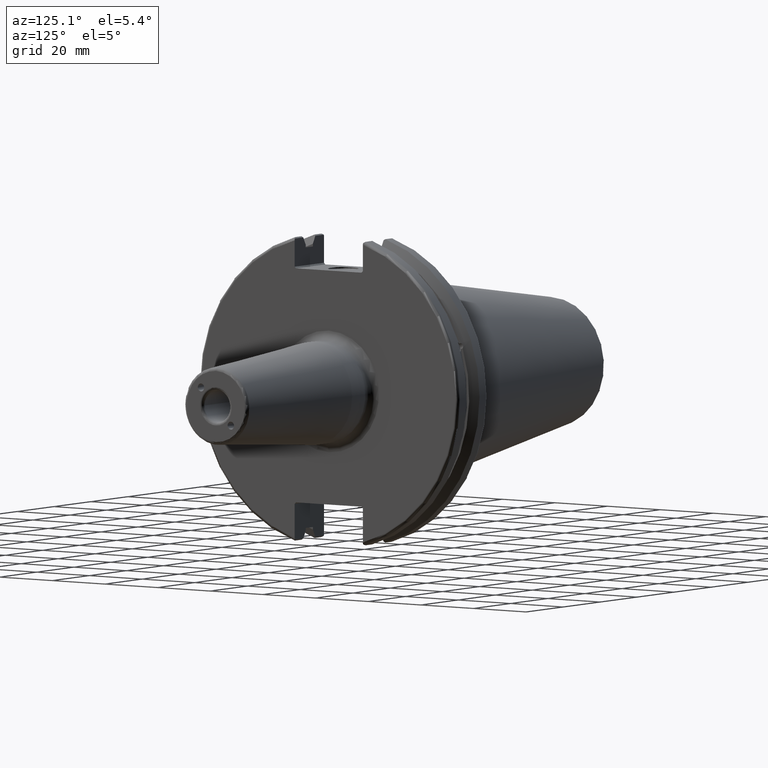
[diagram: clean part render]
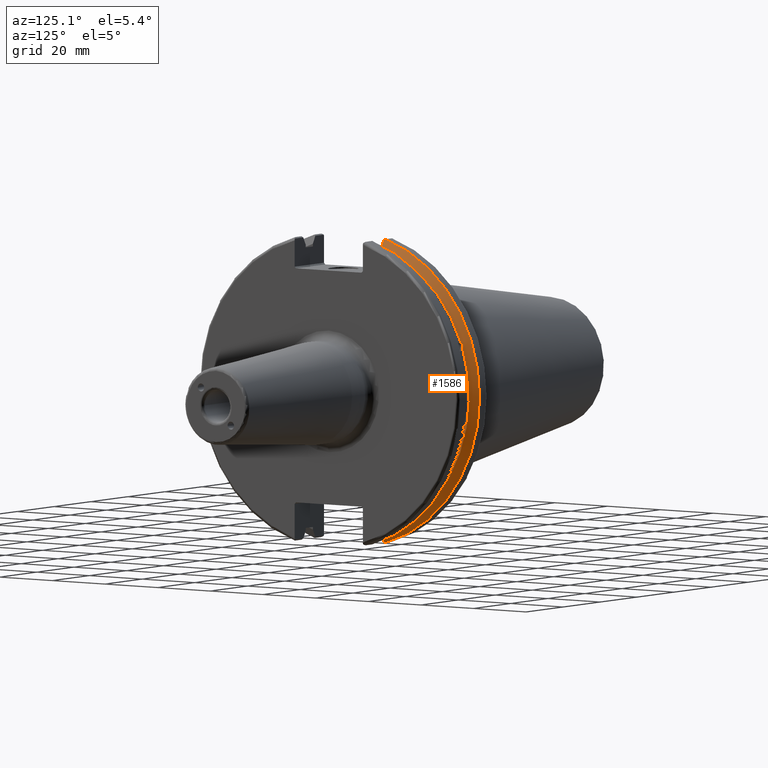
[diagram: same view with one face highlighted and labeled with its STEP entity id]
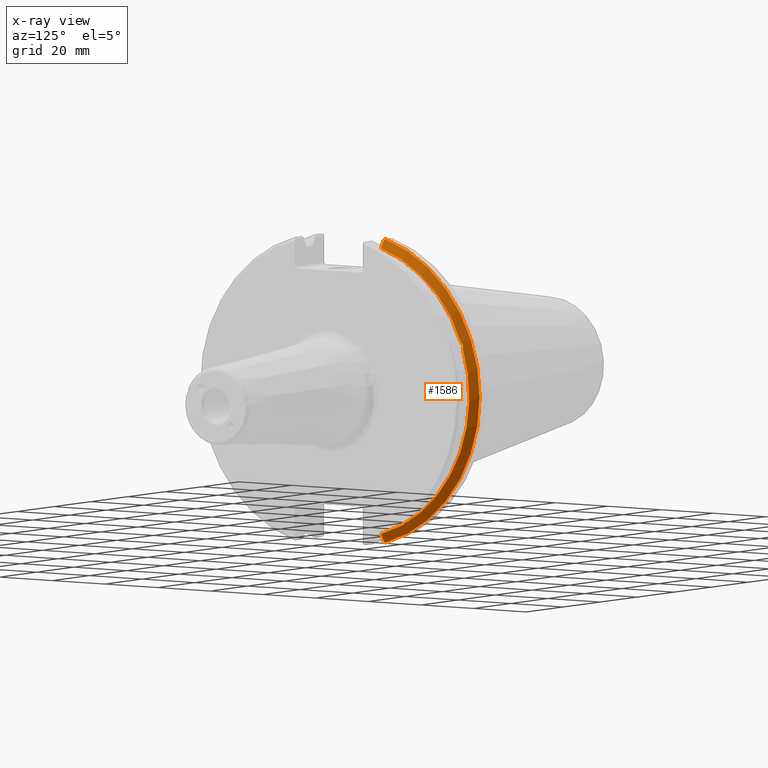
[diagram: x-ray of the same camera — body ghosted, the highlighted face saturated]
A machine part, auxiliary view. The second image highlights one B-rep face of the part: STEP entity #1586.
The next image is the same camera in x-ray: the body ghosted, the highlighted face saturated — about 0% of this face is hidden behind the body in this view.
In plain terms, the highlighted conical surface has half-angle 60 deg.
Its self-contained STEP definition (entity closure, byte-faithful):
#23=(
BOUNDED_CURVE()
B_SPLINE_CURVE(2,(#2959,#2960,#2961),.UNSPECIFIED.,.F.,.F.)
B_SPLINE_CURVE_WITH_KNOTS((3,3),(0.,0.275823910674931),.UNSPECIFIED.)
CURVE()
GEOMETRIC_REPRESENTATION_ITEM()
RATIONAL_B_SPLINE_CURVE((1.,1.00038235574495,1.0001287363679))
REPRESENTATION_ITEM('')
);
#28=(
BOUNDED_CURVE()
B_SPLINE_CURVE(2,(#3101,#3102,#3103),.UNSPECIFIED.,.F.,.F.)
B_SPLINE_CURVE_WITH_KNOTS((3,3),(0.,0.064824047289788),.UNSPECIFIED.)
CURVE()
GEOMETRIC_REPRESENTATION_ITEM()
RATIONAL_B_SPLINE_CURVE((1.,1.00011477674855,1.00019140645979))
REPRESENTATION_ITEM('')
);
#29=(
BOUNDED_CURVE()
B_SPLINE_CURVE(2,(#3132,#3133,#3134),.UNSPECIFIED.,.F.,.F.)
B_SPLINE_CURVE_WITH_KNOTS((3,3),(0.0558332664474718,0.331657177124507),
 .UNSPECIFIED.)
CURVE()
GEOMETRIC_REPRESENTATION_ITEM()
RATIONAL_B_SPLINE_CURVE((1.00012873637085,1.00038235575372,1.))
REPRESENTATION_ITEM('')
);
#30=(
BOUNDED_CURVE()
B_SPLINE_CURVE(2,(#3149,#3150,#3151),.UNSPECIFIED.,.F.,.F.)
B_SPLINE_CURVE_WITH_KNOTS((3,3),(0.325260944932384,0.390084992222206),
 .UNSPECIFIED.)
CURVE()
GEOMETRIC_REPRESENTATION_ITEM()
RATIONAL_B_SPLINE_CURVE((1.00019140645948,1.00011477674836,1.))
REPRESENTATION_ITEM('')
);
#50=B_SPLINE_CURVE_WITH_KNOTS('',3,(#2772,#2773,#2774,#2775,#2776,#2777,
#2778,#2779,#2780,#2781,#2782,#2783,#2784,#2785),.UNSPECIFIED.,.F.,.F.,
(4,2,2,2,2,2,4),(0.426712868358721,0.441644498666905,0.480313313223129,
0.518982127779352,0.557650942335576,0.596319756891799,0.611251387199981),
 .UNSPECIFIED.);
#247=FACE_OUTER_BOUND('',#357,.T.);
#357=EDGE_LOOP('',(#1435,#1436,#1437,#1438,#1439,#1440,#1441,#1442));
#607=CIRCLE('',#1706,46.4219772964944);
#631=CIRCLE('',#1764,49.2125);
#634=CIRCLE('',#1774,46.4219772964944);
#721=VERTEX_POINT('',#2769);
#722=VERTEX_POINT('',#2771);
#734=VERTEX_POINT('',#2846);
#763=VERTEX_POINT('',#2956);
#764=VERTEX_POINT('',#2958);
#785=VERTEX_POINT('',#3099);
#791=VERTEX_POINT('',#3131);
#792=VERTEX_POINT('',#3141);
#901=EDGE_CURVE('',#722,#721,#50,.T.);
#917=EDGE_CURVE('',#722,#734,#607,.T.);
#958=EDGE_CURVE('',#764,#763,#23,.T.);
#993=EDGE_CURVE('',#785,#763,#28,.T.);
#1007=EDGE_CURVE('',#791,#734,#29,.T.);
#1012=EDGE_CURVE('',#785,#792,#631,.T.);
#1014=EDGE_CURVE('',#791,#792,#30,.T.);
#1019=EDGE_CURVE('',#764,#721,#634,.T.);
#1435=ORIENTED_EDGE('',*,*,#901,.T.);
#1436=ORIENTED_EDGE('',*,*,#1019,.F.);
#1437=ORIENTED_EDGE('',*,*,#958,.T.);
#1438=ORIENTED_EDGE('',*,*,#993,.F.);
#1439=ORIENTED_EDGE('',*,*,#1012,.T.);
#1440=ORIENTED_EDGE('',*,*,#1014,.F.);
#1441=ORIENTED_EDGE('',*,*,#1007,.T.);
#1442=ORIENTED_EDGE('',*,*,#917,.F.);
#1505=CONICAL_SURFACE('',#1773,47.8172386482472,1.0471975511966);
#1586=ADVANCED_FACE('',(#247),#1505,.T.);
#1706=AXIS2_PLACEMENT_3D('',#2847,#2007,#2008);
#1764=AXIS2_PLACEMENT_3D('',#3143,#2170,#2171);
#1773=AXIS2_PLACEMENT_3D('',#3161,#2191,#2192);
#1774=AXIS2_PLACEMENT_3D('',#3162,#2193,#2194);
#2007=DIRECTION('center_axis',(1.,0.,0.));
#2008=DIRECTION('ref_axis',(0.,0.,-1.));
#2170=DIRECTION('center_axis',(1.,0.,0.));
#2171=DIRECTION('ref_axis',(0.,0.,-1.));
#2191=DIRECTION('center_axis',(-1.,0.,0.));
#2192=DIRECTION('ref_axis',(0.,1.,0.));
#2193=DIRECTION('center_axis',(1.,0.,0.));
#2194=DIRECTION('ref_axis',(0.,0.,-1.));
#2769=CARTESIAN_POINT('',(9.21200000000001,43.9096390749305,15.0646464421033));
#2771=CARTESIAN_POINT('',(9.21200000000001,43.3201030900029,16.6843832486479));
#2772=CARTESIAN_POINT('Ctrl Pts',(9.212,43.3201030900029,16.6843832486479));
#2773=CARTESIAN_POINT('Ctrl Pts',(9.19501843903392,43.3613106941341,16.6592273018006));
#2774=CARTESIAN_POINT('Ctrl Pts',(9.17898675403323,43.4012416983557,16.6326763251437));
#2775=CARTESIAN_POINT('Ctrl Pts',(9.12528673845038,43.539103734322,16.5325130832406));
#2776=CARTESIAN_POINT('Ctrl Pts',(9.08911610663556,43.6406982153491,16.441180795372));
#2777=CARTESIAN_POINT('Ctrl Pts',(9.03980868251976,43.8110833825827,16.2291323464527));
#2778=CARTESIAN_POINT('Ctrl Pts',(9.027,43.8794096049168,16.10796730316));
#2779=CARTESIAN_POINT('Ctrl Pts',(9.027,43.9675796948952,15.8657219718732));
#2780=CARTESIAN_POINT('Ctrl Pts',(9.03980868251976,43.9931221605125,15.7289849146254));
#2781=CARTESIAN_POINT('Ctrl Pts',(9.08911610663556,43.9989016655819,15.4570249042867));
#2782=CARTESIAN_POINT('Ctrl Pts',(9.12528673845038,43.9797830409458,15.3217566390708));
#2783=CARTESIAN_POINT('Ctrl Pts',(9.17898675403322,43.9385582852181,15.1564111356409));
#2784=CARTESIAN_POINT('Ctrl Pts',(9.19501843903391,43.9250360001461,15.1104047527575));
#2785=CARTESIAN_POINT('Ctrl Pts',(9.21199999999999,43.9096390749305,15.0646464421033));
#2846=CARTESIAN_POINT('',(9.21200000000001,12.95,44.5791147973604));
#2847=CARTESIAN_POINT('Origin',(9.21200000000001,0.,0.));
#2956=CARTESIAN_POINT('',(7.87928960562424,12.95,-46.9780755322918));
#2958=CARTESIAN_POINT('',(9.21200000000001,12.95,-44.5791147973604));
#2959=CARTESIAN_POINT('Ctrl Pts',(9.21200000000001,12.95,-44.5791147973604));
#2960=CARTESIAN_POINT('Ctrl Pts',(8.5631044905565,12.95,-45.7494966802185));
#2961=CARTESIAN_POINT('Ctrl Pts',(7.87928960562424,12.95,-46.9780755322917));
#3099=CARTESIAN_POINT('',(7.60089096595127,13.4317035994433,-47.3440544806494));
#3101=CARTESIAN_POINT('Ctrl Pts',(7.60089096595127,13.4317035994433,-47.3440544806494));
#3102=CARTESIAN_POINT('Ctrl Pts',(7.74116896663821,13.1896660169966,-47.1601640966264));
#3103=CARTESIAN_POINT('Ctrl Pts',(7.87928960562424,12.95,-46.9780755322918));
#3131=CARTESIAN_POINT('',(7.87928960562422,12.95,46.9780755322917));
#3132=CARTESIAN_POINT('Ctrl Pts',(7.87928960562422,12.95,46.9780755322917));
#3133=CARTESIAN_POINT('Ctrl Pts',(8.5631044905765,12.95,45.7494966801825));
#3134=CARTESIAN_POINT('Ctrl Pts',(9.21200000000001,12.95,44.5791147973604));
#3141=CARTESIAN_POINT('',(7.60089096595127,13.4317035994433,47.3440544806494));
#3143=CARTESIAN_POINT('Origin',(7.60089096595127,0.,0.));
#3149=CARTESIAN_POINT('Ctrl Pts',(7.87928960562422,12.95,46.9780755322917));
#3150=CARTESIAN_POINT('Ctrl Pts',(7.74116896663815,13.1896660169967,47.1601640966265));
#3151=CARTESIAN_POINT('Ctrl Pts',(7.60089096595127,13.4317035994433,47.3440544806494));
#3161=CARTESIAN_POINT('Origin',(8.40644548297563,0.,0.));
#3162=CARTESIAN_POINT('Origin',(9.21200000000001,0.,0.));